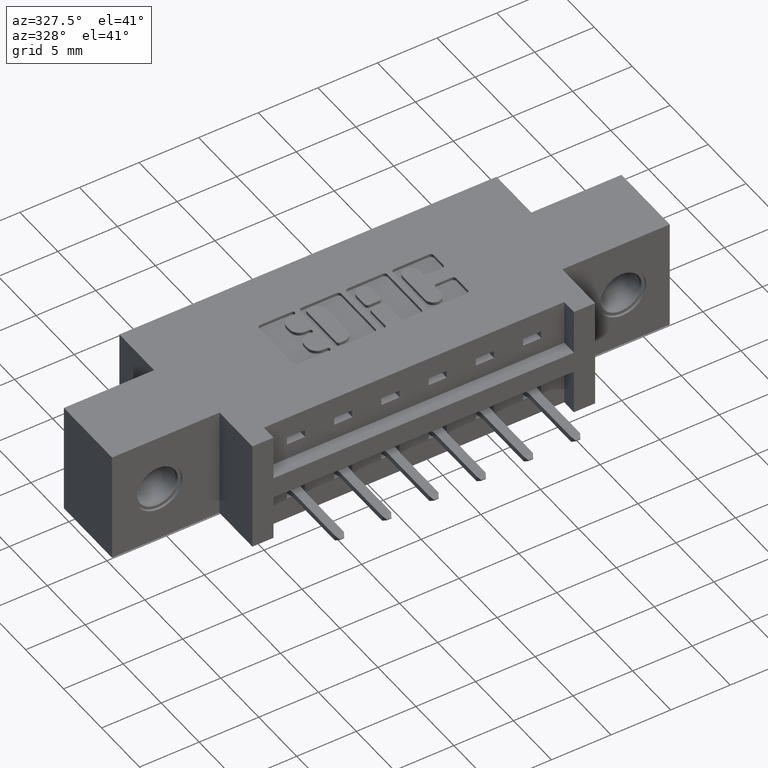
[diagram: clean part render]
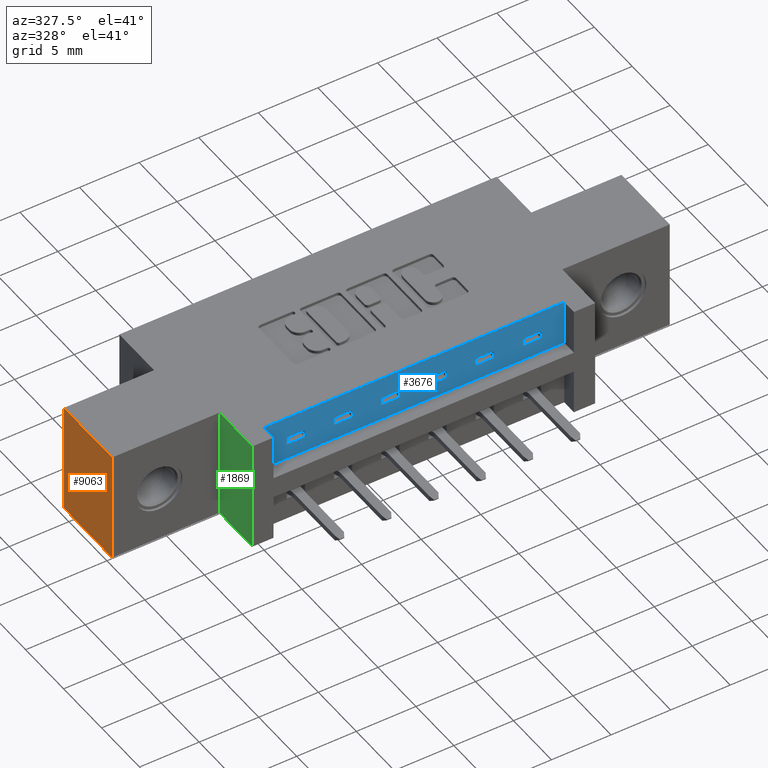
[diagram: same view with three faces highlighted in distinct colors, each labeled with its STEP entity id]
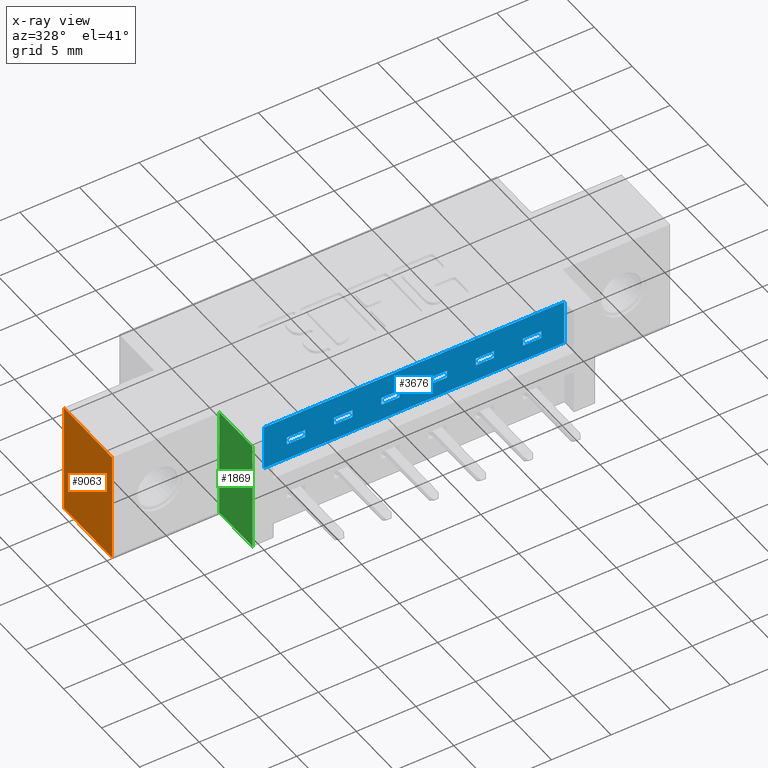
[diagram: x-ray of the same camera — body ghosted, the three highlighted faces saturated]
A machine part, auxiliary view with three faces highlighted in distinct colors.
The next image is the same camera in x-ray (body ghosted, the three faces saturated) — at least one of them is partly hidden behind the body in this view.
Their STEP definitions:

[orange] entity #9063 — the highlighted planar face has unit normal (1, 0, 0).
#407 = EDGE_CURVE ( 'NONE', #4649, #4435, #2341, .T. ) ;
#456 = VERTEX_POINT ( 'NONE', #3846 ) ;
#1125 = EDGE_CURVE ( 'NONE', #10268, #456, #9708, .T. ) ;
#1137 = DIRECTION ( 'NONE',  ( -0.0000000000000000000, -1.000000000000000000, -0.0000000000000000000 ) ) ;
#1508 = CARTESIAN_POINT ( 'NONE',  ( 0.0000000000000000000, 0.1699999999999999800, 0.0000000000000000000 ) ) ;
#1569 = VECTOR ( 'NONE', #6306, 39.37007874015748100 ) ;
#1788 = PLANE ( 'NONE',  #2459 ) ;
#2341 = LINE ( 'NONE', #1508, #1569 ) ;
#2459 = AXIS2_PLACEMENT_3D ( 'NONE', #7519, #3565, #4306 ) ;
#3565 = DIRECTION ( 'NONE',  ( 1.000000000000000000, -0.0000000000000000000, 0.0000000000000000000 ) ) ;
#3846 = CARTESIAN_POINT ( 'NONE',  ( 0.0000000000000000000, 0.4199999999999999800, 0.0000000000000000000 ) ) ;
#4306 = DIRECTION ( 'NONE',  ( 0.0000000000000000000, 0.0000000000000000000, -1.000000000000000000 ) ) ;
#4435 = VERTEX_POINT ( 'NONE', #8910 ) ;
#4506 = EDGE_LOOP ( 'NONE', ( #6530, #7599, #7110, #6072 ) ) ;
#4609 = CARTESIAN_POINT ( 'NONE',  ( 0.0000000000000000000, 0.5999999999999999800, -0.3700000000000001600 ) ) ;
#4649 = VERTEX_POINT ( 'NONE', #5791 ) ;
#5791 = CARTESIAN_POINT ( 'NONE',  ( 0.0000000000000000000, 0.1699999999999999800, 0.0000000000000000000 ) ) ;
#6072 = ORIENTED_EDGE ( 'NONE', *, *, #7587, .T. ) ;
#6306 = DIRECTION ( 'NONE',  ( 0.0000000000000000000, 0.0000000000000000000, -1.000000000000000000 ) ) ;
#6350 = EDGE_CURVE ( 'NONE', #456, #4649, #9753, .T. ) ;
#6530 = ORIENTED_EDGE ( 'NONE', *, *, #407, .F. ) ;
#6877 = FACE_OUTER_BOUND ( 'NONE', #4506, .T. ) ;
#7026 = VECTOR ( 'NONE', #7419, 39.37007874015748100 ) ;
#7110 = ORIENTED_EDGE ( 'NONE', *, *, #1125, .F. ) ;
#7419 = DIRECTION ( 'NONE',  ( -0.0000000000000000000, -0.0000000000000000000, 1.000000000000000000 ) ) ;
#7519 = CARTESIAN_POINT ( 'NONE',  ( 0.0000000000000000000, 0.5999999999999999800, 0.0000000000000000000 ) ) ;
#7587 = EDGE_CURVE ( 'NONE', #10268, #4435, #9966, .T. ) ;
#7599 = ORIENTED_EDGE ( 'NONE', *, *, #6350, .F. ) ;
#7887 = DIRECTION ( 'NONE',  ( -0.0000000000000000000, -1.000000000000000000, -0.0000000000000000000 ) ) ;
#8739 = VECTOR ( 'NONE', #1137, 39.37007874015748100 ) ;
#8910 = CARTESIAN_POINT ( 'NONE',  ( 0.0000000000000000000, 0.1699999999999999800, -0.3700000000000001600 ) ) ;
#9063 = ADVANCED_FACE ( 'NONE', ( #6877 ), #1788, .F. ) ;
#9708 = LINE ( 'NONE', #9877, #7026 ) ;
#9734 = VECTOR ( 'NONE', #7887, 39.37007874015748100 ) ;
#9753 = LINE ( 'NONE', #10356, #8739 ) ;
#9877 = CARTESIAN_POINT ( 'NONE',  ( 0.0000000000000000000, 0.4199999999999999800, 0.0000000000000000000 ) ) ;
#9966 = LINE ( 'NONE', #4609, #9734 ) ;
#10244 = CARTESIAN_POINT ( 'NONE',  ( 0.0000000000000000000, 0.4199999999999999800, -0.3700000000000001600 ) ) ;
#10268 = VERTEX_POINT ( 'NONE', #10244 ) ;
#10356 = CARTESIAN_POINT ( 'NONE',  ( 0.0000000000000000000, 0.5999999999999999800, 0.0000000000000000000 ) ) ;

[blue] entity #3676 — the highlighted planar face has unit normal (0, -1, 0).
#10 = VECTOR ( 'NONE', #2790, 39.37007874015748100 ) ;
#81 = DIRECTION ( 'NONE',  ( 0.0000000000000000000, 0.0000000000000000000, 1.000000000000000000 ) ) ;
#127 = VECTOR ( 'NONE', #6241, 39.37007874015748100 ) ;
#139 = LINE ( 'NONE', #5735, #8048 ) ;
#219 = ORIENTED_EDGE ( 'NONE', *, *, #2062, .F. ) ;
#251 = LINE ( 'NONE', #826, #5095 ) ;
#253 = CARTESIAN_POINT ( 'NONE',  ( 1.124999999999999800, 0.05000000000000014800, -0.07250000000000000900 ) ) ;
#421 = CARTESIAN_POINT ( 'NONE',  ( 0.9689999999999998600, 0.05000000000000001000, -0.09750000000000001700 ) ) ;
#435 = CARTESIAN_POINT ( 'NONE',  ( 0.4249999999999999300, 0.05000000000000000300, -0.09750000000000000300 ) ) ;
#476 = EDGE_CURVE ( 'NONE', #4278, #8372, #9968, .T. ) ;
#482 = EDGE_CURVE ( 'NONE', #6833, #3870, #2599, .T. ) ;
#538 = CARTESIAN_POINT ( 'NONE',  ( 0.5610000000000000500, 0.05000000000000000300, -0.1499999999999999900 ) ) ;
#613 = CARTESIAN_POINT ( 'NONE',  ( 1.340999999999999700, 0.05000000000000000300, -0.09750000000000000300 ) ) ;
#677 = VERTEX_POINT ( 'NONE', #6852 ) ;
#770 = CARTESIAN_POINT ( 'NONE',  ( 0.9689999999999998600, 0.05000000000000014800, -0.07250000000000000900 ) ) ;
#783 = CARTESIAN_POINT ( 'NONE',  ( 0.8129999999999999400, 0.05000000000000001000, -0.09750000000000003100 ) ) ;
#801 = VECTOR ( 'NONE', #1790, 39.37007874015748100 ) ;
#826 = CARTESIAN_POINT ( 'NONE',  ( 0.4249999999999999300, 0.05000000000000000300, -0.07250000000000005100 ) ) ;
#846 = VERTEX_POINT ( 'NONE', #2845 ) ;
#889 = DIRECTION ( 'NONE',  ( 0.0000000000000000000, 0.0000000000000000000, 1.000000000000000000 ) ) ;
#964 = EDGE_CURVE ( 'NONE', #7929, #9888, #5743, .T. ) ;
#968 = ORIENTED_EDGE ( 'NONE', *, *, #3222, .F. ) ;
#1061 = ORIENTED_EDGE ( 'NONE', *, *, #9513, .F. ) ;
#1065 = CARTESIAN_POINT ( 'NONE',  ( 0.8730000000000000000, 0.05000000000000000300, -0.1499999999999999900 ) ) ;
#1142 = EDGE_CURVE ( 'NONE', #9391, #2408, #139, .T. ) ;
#1164 = ORIENTED_EDGE ( 'NONE', *, *, #3696, .F. ) ;
#1272 = VECTOR ( 'NONE', #7625, 39.37007874015748100 ) ;
#1281 = VERTEX_POINT ( 'NONE', #7778 ) ;
#1285 = VECTOR ( 'NONE', #5212, 39.37007874015748100 ) ;
#1305 = VERTEX_POINT ( 'NONE', #3017 ) ;
#1392 = EDGE_CURVE ( 'NONE', #3897, #6833, #6122, .T. ) ;
#1424 = LINE ( 'NONE', #1522, #2703 ) ;
#1426 = EDGE_CURVE ( 'NONE', #10348, #2416, #6640, .T. ) ;
#1440 = EDGE_CURVE ( 'NONE', #7591, #10348, #6376, .T. ) ;
#1522 = CARTESIAN_POINT ( 'NONE',  ( 0.4249999999999999300, 0.05000000000000000300, 0.0000000000000000000 ) ) ;
#1612 = CARTESIAN_POINT ( 'NONE',  ( 0.4249999999999999300, 0.05000000000000000300, 0.0000000000000000000 ) ) ;
#1680 = CARTESIAN_POINT ( 'NONE',  ( 0.9689999999999998600, 0.05000000000000000300, -0.1499999999999999900 ) ) ;
#1709 = VECTOR ( 'NONE', #10509, 39.37007874015748100 ) ;
#1713 = EDGE_CURVE ( 'NONE', #9353, #8366, #10195, .T. ) ;
#1731 = ORIENTED_EDGE ( 'NONE', *, *, #1440, .F. ) ;
#1790 = DIRECTION ( 'NONE',  ( 0.0000000000000000000, 0.0000000000000000000, 1.000000000000000000 ) ) ;
#1866 = DIRECTION ( 'NONE',  ( -1.000000000000000000, 0.0000000000000000000, 0.0000000000000000000 ) ) ;
#1876 = FACE_BOUND ( 'NONE', #10149, .T. ) ;
#1911 = DIRECTION ( 'NONE',  ( 1.000000000000000000, 0.0000000000000000000, 0.0000000000000000000 ) ) ;
#1939 = DIRECTION ( 'NONE',  ( 0.0000000000000000000, 0.0000000000000000000, 1.000000000000000000 ) ) ;
#1965 = ORIENTED_EDGE ( 'NONE', *, *, #1426, .F. ) ;
#2020 = LINE ( 'NONE', #10020, #2538 ) ;
#2048 = LINE ( 'NONE', #7797, #8674 ) ;
#2062 = EDGE_CURVE ( 'NONE', #8612, #4124, #2048, .T. ) ;
#2186 = CARTESIAN_POINT ( 'NONE',  ( 0.6570000000000000300, 0.05000000000000014800, -0.07250000000000003700 ) ) ;
#2233 = DIRECTION ( 'NONE',  ( -0.0000000000000000000, -0.0000000000000000000, 1.000000000000000000 ) ) ;
#2344 = LINE ( 'NONE', #1065, #801 ) ;
#2408 = VERTEX_POINT ( 'NONE', #7478 ) ;
#2416 = VERTEX_POINT ( 'NONE', #7398 ) ;
#2513 = ORIENTED_EDGE ( 'NONE', *, *, #9426, .F. ) ;
#2521 = EDGE_CURVE ( 'NONE', #5753, #846, #5592, .T. ) ;
#2526 = ORIENTED_EDGE ( 'NONE', *, *, #1142, .T. ) ;
#2538 = VECTOR ( 'NONE', #2771, 39.37007874015748100 ) ;
#2599 = LINE ( 'NONE', #7273, #4226 ) ;
#2703 = VECTOR ( 'NONE', #7219, 39.37007874015748100 ) ;
#2730 = VERTEX_POINT ( 'NONE', #8652 ) ;
#2764 = ORIENTED_EDGE ( 'NONE', *, *, #4993, .F. ) ;
#2771 = DIRECTION ( 'NONE',  ( -1.000000000000000000, 0.0000000000000000000, 0.0000000000000000000 ) ) ;
#2790 = DIRECTION ( 'NONE',  ( 0.0000000000000000000, 0.0000000000000000000, 1.000000000000000000 ) ) ;
#2839 = CARTESIAN_POINT ( 'NONE',  ( 0.4249999999999999300, 0.05000000000000000300, -0.1499999999999999900 ) ) ;
#2845 = CARTESIAN_POINT ( 'NONE',  ( 1.280999999999999700, 0.05000000000000014800, -0.07249999999999998100 ) ) ;
#2847 = CARTESIAN_POINT ( 'NONE',  ( 1.185000000000000100, 0.05000000000000000300, -0.09750000000000000300 ) ) ;
#3017 = CARTESIAN_POINT ( 'NONE',  ( 1.417000000000000700, 0.05000000000000000300, -0.1499999999999999900 ) ) ;
#3077 = VECTOR ( 'NONE', #1866, 39.37007874015748100 ) ;
#3078 = CARTESIAN_POINT ( 'NONE',  ( 0.4249999999999999300, 0.05000000000000000300, -0.09750000000000005900 ) ) ;
#3125 = ORIENTED_EDGE ( 'NONE', *, *, #8685, .T. ) ;
#3133 = EDGE_LOOP ( 'NONE', ( #5494, #4804, #5525, #9766 ) ) ;
#3143 = EDGE_LOOP ( 'NONE', ( #1731, #3125, #4749, #1965 ) ) ;
#3179 = EDGE_CURVE ( 'NONE', #9391, #2730, #7630, .T. ) ;
#3222 = EDGE_CURVE ( 'NONE', #3286, #2408, #2020, .T. ) ;
#3224 = CARTESIAN_POINT ( 'NONE',  ( 0.4249999999999999300, 0.05000000000000000300, 0.0000000000000000000 ) ) ;
#3286 = VERTEX_POINT ( 'NONE', #10264 ) ;
#3315 = AXIS2_PLACEMENT_3D ( 'NONE', #2839, #9250, #8457 ) ;
#3423 = CARTESIAN_POINT ( 'NONE',  ( 0.6570000000000000300, 0.05000000000000001000, -0.09750000000000003100 ) ) ;
#3456 = CARTESIAN_POINT ( 'NONE',  ( 0.4249999999999999300, 0.05000000000000000300, -0.07250000000000000900 ) ) ;
#3538 = ORIENTED_EDGE ( 'NONE', *, *, #9829, .F. ) ;
#3606 = CARTESIAN_POINT ( 'NONE',  ( 0.4249999999999999300, 0.05000000000000000300, -0.09750000000000003100 ) ) ;
#3610 = VECTOR ( 'NONE', #7388, 39.37007874015748100 ) ;
#3662 = FACE_BOUND ( 'NONE', #4818, .T. ) ;
#3676 = ADVANCED_FACE ( 'NONE', ( #6326, #5808, #5176, #4815, #3662, #7480, #1876 ), #10131, .T. ) ;
#3696 = EDGE_CURVE ( 'NONE', #4278, #9353, #9645, .T. ) ;
#3759 = ORIENTED_EDGE ( 'NONE', *, *, #2521, .T. ) ;
#3777 = DIRECTION ( 'NONE',  ( 1.000000000000000000, 0.0000000000000000000, 0.0000000000000000000 ) ) ;
#3870 = VERTEX_POINT ( 'NONE', #4746 ) ;
#3897 = VERTEX_POINT ( 'NONE', #9626 ) ;
#3985 = DIRECTION ( 'NONE',  ( 0.0000000000000000000, 0.0000000000000000000, 1.000000000000000000 ) ) ;
#3986 = CARTESIAN_POINT ( 'NONE',  ( 1.280999999999999700, 0.05000000000000001000, -0.09750000000000000300 ) ) ;
#4002 = DIRECTION ( 'NONE',  ( -1.000000000000000000, -0.0000000000000000000, -0.0000000000000000000 ) ) ;
#4074 = DIRECTION ( 'NONE',  ( -1.000000000000000000, 0.0000000000000000000, 0.0000000000000000000 ) ) ;
#4098 = CARTESIAN_POINT ( 'NONE',  ( 0.4249999999999999300, 0.05000000000000000300, -0.1499999999999999900 ) ) ;
#4105 = LINE ( 'NONE', #7533, #10105 ) ;
#4124 = VERTEX_POINT ( 'NONE', #6706 ) ;
#4134 = DIRECTION ( 'NONE',  ( 0.0000000000000000000, 0.0000000000000000000, 1.000000000000000000 ) ) ;
#4226 = VECTOR ( 'NONE', #81, 39.37007874015748100 ) ;
#4242 = LINE ( 'NONE', #8021, #8950 ) ;
#4278 = VERTEX_POINT ( 'NONE', #421 ) ;
#4311 = ORIENTED_EDGE ( 'NONE', *, *, #5301, .T. ) ;
#4345 = VERTEX_POINT ( 'NONE', #613 ) ;
#4397 = ORIENTED_EDGE ( 'NONE', *, *, #7934, .F. ) ;
#4415 = VERTEX_POINT ( 'NONE', #2186 ) ;
#4462 = LINE ( 'NONE', #6200, #6489 ) ;
#4618 = CARTESIAN_POINT ( 'NONE',  ( 0.4249999999999999300, 0.05000000000000000300, -0.07250000000000000900 ) ) ;
#4690 = DIRECTION ( 'NONE',  ( 1.000000000000000000, 0.0000000000000000000, 0.0000000000000000000 ) ) ;
#4716 = LINE ( 'NONE', #6767, #9305 ) ;
#4746 = CARTESIAN_POINT ( 'NONE',  ( 1.184999999999999800, 0.05000000000000014800, -0.07250000000000000900 ) ) ;
#4749 = ORIENTED_EDGE ( 'NONE', *, *, #10003, .F. ) ;
#4804 = ORIENTED_EDGE ( 'NONE', *, *, #5478, .T. ) ;
#4815 = FACE_BOUND ( 'NONE', #6564, .T. ) ;
#4818 = EDGE_LOOP ( 'NONE', ( #1164, #8135, #2764, #7437 ) ) ;
#4891 = CARTESIAN_POINT ( 'NONE',  ( 1.028999999999999900, 0.05000000000000000300, -0.09750000000000001700 ) ) ;
#4931 = ORIENTED_EDGE ( 'NONE', *, *, #9012, .T. ) ;
#4993 = EDGE_CURVE ( 'NONE', #8366, #8372, #7440, .T. ) ;
#5007 = VECTOR ( 'NONE', #889, 39.37007874015748100 ) ;
#5079 = LINE ( 'NONE', #8373, #6862 ) ;
#5095 = VECTOR ( 'NONE', #8202, 39.37007874015748100 ) ;
#5176 = FACE_BOUND ( 'NONE', #6329, .T. ) ;
#5212 = DIRECTION ( 'NONE',  ( 0.0000000000000000000, 0.0000000000000000000, 1.000000000000000000 ) ) ;
#5261 = ORIENTED_EDGE ( 'NONE', *, *, #10194, .F. ) ;
#5301 = EDGE_CURVE ( 'NONE', #5556, #1305, #9086, .T. ) ;
#5415 = CARTESIAN_POINT ( 'NONE',  ( 0.4249999999999999300, 0.05000000000000000300, -0.1499999999999999900 ) ) ;
#5424 = ORIENTED_EDGE ( 'NONE', *, *, #3179, .F. ) ;
#5478 = EDGE_CURVE ( 'NONE', #3897, #7435, #4105, .T. ) ;
#5494 = ORIENTED_EDGE ( 'NONE', *, *, #1392, .F. ) ;
#5500 = CARTESIAN_POINT ( 'NONE',  ( 1.028999999999999900, 0.05000000000000014800, -0.07250000000000000900 ) ) ;
#5525 = ORIENTED_EDGE ( 'NONE', *, *, #9093, .F. ) ;
#5556 = VERTEX_POINT ( 'NONE', #5415 ) ;
#5592 = LINE ( 'NONE', #7585, #1272 ) ;
#5705 = ORIENTED_EDGE ( 'NONE', *, *, #7864, .F. ) ;
#5735 = CARTESIAN_POINT ( 'NONE',  ( 0.8129999999999999400, 0.05000000000000000300, -0.1499999999999999900 ) ) ;
#5743 = LINE ( 'NONE', #3224, #7798 ) ;
#5753 = VERTEX_POINT ( 'NONE', #3986 ) ;
#5774 = CARTESIAN_POINT ( 'NONE',  ( 1.340999999999999700, 0.05000000000000014800, -0.07249999999999998100 ) ) ;
#5808 = FACE_BOUND ( 'NONE', #3143, .T. ) ;
#5987 = LINE ( 'NONE', #3456, #3077 ) ;
#5996 = DIRECTION ( 'NONE',  ( 0.0000000000000000000, 0.0000000000000000000, 1.000000000000000000 ) ) ;
#6106 = CARTESIAN_POINT ( 'NONE',  ( 0.5010000000000001100, 0.05000000000000000300, -0.1499999999999999900 ) ) ;
#6122 = LINE ( 'NONE', #435, #127 ) ;
#6130 = CARTESIAN_POINT ( 'NONE',  ( 0.4249999999999999300, 0.05000000000000000300, -0.09750000000000001700 ) ) ;
#6136 = LINE ( 'NONE', #6106, #10 ) ;
#6200 = CARTESIAN_POINT ( 'NONE',  ( 0.4249999999999999300, 0.05000000000000000300, -0.07249999999999998100 ) ) ;
#6241 = DIRECTION ( 'NONE',  ( 1.000000000000000000, 0.0000000000000000000, 0.0000000000000000000 ) ) ;
#6326 = FACE_OUTER_BOUND ( 'NONE', #8136, .T. ) ;
#6329 = EDGE_LOOP ( 'NONE', ( #219, #9757, #2513, #5261 ) ) ;
#6376 = LINE ( 'NONE', #3078, #7155 ) ;
#6377 = LINE ( 'NONE', #9420, #1285 ) ;
#6484 = CARTESIAN_POINT ( 'NONE',  ( 0.4249999999999999300, 0.05000000000000000300, -0.09750000000000000300 ) ) ;
#6489 = VECTOR ( 'NONE', #8797, 39.37007874015748100 ) ;
#6564 = EDGE_LOOP ( 'NONE', ( #5424, #2526, #968, #4397 ) ) ;
#6597 = CARTESIAN_POINT ( 'NONE',  ( 1.028999999999999900, 0.05000000000000000300, -0.1499999999999999900 ) ) ;
#6640 = LINE ( 'NONE', #538, #7789 ) ;
#6655 = CARTESIAN_POINT ( 'NONE',  ( 1.417000000000000700, 0.05000000000000000300, 0.0000000000000000000 ) ) ;
#6706 = CARTESIAN_POINT ( 'NONE',  ( 0.7170000000000000800, 0.05000000000000000300, -0.09750000000000003100 ) ) ;
#6713 = VECTOR ( 'NONE', #10224, 39.37007874015748100 ) ;
#6767 = CARTESIAN_POINT ( 'NONE',  ( 1.340999999999999700, 0.05000000000000000300, -0.1499999999999999900 ) ) ;
#6833 = VERTEX_POINT ( 'NONE', #2847 ) ;
#6852 = CARTESIAN_POINT ( 'NONE',  ( 0.5010000000000001100, 0.05000000000000014800, -0.07250000000000005100 ) ) ;
#6862 = VECTOR ( 'NONE', #5996, 39.37007874015748100 ) ;
#6935 = ORIENTED_EDGE ( 'NONE', *, *, #964, .T. ) ;
#7061 = DIRECTION ( 'NONE',  ( 0.0000000000000000000, 0.0000000000000000000, 1.000000000000000000 ) ) ;
#7155 = VECTOR ( 'NONE', #4690, 39.37007874015748100 ) ;
#7219 = DIRECTION ( 'NONE',  ( 0.0000000000000000000, 0.0000000000000000000, -1.000000000000000000 ) ) ;
#7273 = CARTESIAN_POINT ( 'NONE',  ( 1.185000000000000100, 0.05000000000000000300, -0.1499999999999999900 ) ) ;
#7364 = VERTEX_POINT ( 'NONE', #5774 ) ;
#7388 = DIRECTION ( 'NONE',  ( 1.000000000000000000, 0.0000000000000000000, 0.0000000000000000000 ) ) ;
#7398 = CARTESIAN_POINT ( 'NONE',  ( 0.5610000000000000500, 0.05000000000000014800, -0.07250000000000005100 ) ) ;
#7435 = VERTEX_POINT ( 'NONE', #253 ) ;
#7437 = ORIENTED_EDGE ( 'NONE', *, *, #1713, .F. ) ;
#7440 = LINE ( 'NONE', #4618, #7565 ) ;
#7478 = CARTESIAN_POINT ( 'NONE',  ( 0.8129999999999999400, 0.05000000000000014800, -0.07250000000000002300 ) ) ;
#7480 = FACE_BOUND ( 'NONE', #3133, .T. ) ;
#7533 = CARTESIAN_POINT ( 'NONE',  ( 1.124999999999999800, 0.05000000000000000300, -0.1499999999999999900 ) ) ;
#7565 = VECTOR ( 'NONE', #9452, 39.37007874015748100 ) ;
#7585 = CARTESIAN_POINT ( 'NONE',  ( 1.280999999999999700, 0.05000000000000000300, -0.1499999999999999900 ) ) ;
#7591 = VERTEX_POINT ( 'NONE', #10166 ) ;
#7625 = DIRECTION ( 'NONE',  ( 0.0000000000000000000, 0.0000000000000000000, 1.000000000000000000 ) ) ;
#7630 = LINE ( 'NONE', #3606, #8254 ) ;
#7673 = EDGE_CURVE ( 'NONE', #1305, #7929, #4242, .T. ) ;
#7778 = CARTESIAN_POINT ( 'NONE',  ( 0.7170000000000000800, 0.05000000000000014800, -0.07250000000000003700 ) ) ;
#7789 = VECTOR ( 'NONE', #7061, 39.37007874015748100 ) ;
#7797 = CARTESIAN_POINT ( 'NONE',  ( 0.4249999999999999300, 0.05000000000000000300, -0.09750000000000003100 ) ) ;
#7798 = VECTOR ( 'NONE', #4002, 39.37007874015748100 ) ;
#7828 = CARTESIAN_POINT ( 'NONE',  ( 0.5610000000000000500, 0.05000000000000000300, -0.09750000000000005900 ) ) ;
#7864 = EDGE_CURVE ( 'NONE', #5753, #4345, #8719, .T. ) ;
#7929 = VERTEX_POINT ( 'NONE', #6655 ) ;
#7934 = EDGE_CURVE ( 'NONE', #2730, #3286, #2344, .T. ) ;
#8021 = CARTESIAN_POINT ( 'NONE',  ( 1.417000000000000700, 0.05000000000000000300, 0.0000000000000000000 ) ) ;
#8048 = VECTOR ( 'NONE', #4134, 39.37007874015748100 ) ;
#8135 = ORIENTED_EDGE ( 'NONE', *, *, #476, .T. ) ;
#8136 = EDGE_LOOP ( 'NONE', ( #4931, #4311, #9088, #6935 ) ) ;
#8154 = VECTOR ( 'NONE', #4074, 39.37007874015748100 ) ;
#8202 = DIRECTION ( 'NONE',  ( -1.000000000000000000, 0.0000000000000000000, 0.0000000000000000000 ) ) ;
#8254 = VECTOR ( 'NONE', #1911, 39.37007874015748100 ) ;
#8366 = VERTEX_POINT ( 'NONE', #5500 ) ;
#8372 = VERTEX_POINT ( 'NONE', #770 ) ;
#8373 = CARTESIAN_POINT ( 'NONE',  ( 0.7170000000000000800, 0.05000000000000000300, -0.1499999999999999900 ) ) ;
#8457 = DIRECTION ( 'NONE',  ( 0.0000000000000000000, -0.0000000000000000000, -1.000000000000000000 ) ) ;
#8612 = VERTEX_POINT ( 'NONE', #3423 ) ;
#8652 = CARTESIAN_POINT ( 'NONE',  ( 0.8730000000000000000, 0.05000000000000000300, -0.09750000000000003100 ) ) ;
#8674 = VECTOR ( 'NONE', #3777, 39.37007874015748100 ) ;
#8685 = EDGE_CURVE ( 'NONE', #7591, #677, #6136, .T. ) ;
#8719 = LINE ( 'NONE', #6484, #1709 ) ;
#8797 = DIRECTION ( 'NONE',  ( -1.000000000000000000, 0.0000000000000000000, 0.0000000000000000000 ) ) ;
#8799 = VECTOR ( 'NONE', #3985, 39.37007874015748100 ) ;
#8851 = EDGE_CURVE ( 'NONE', #8612, #4415, #6377, .T. ) ;
#8950 = VECTOR ( 'NONE', #2233, 39.37007874015748100 ) ;
#9012 = EDGE_CURVE ( 'NONE', #9888, #5556, #1424, .T. ) ;
#9086 = LINE ( 'NONE', #4098, #3610 ) ;
#9088 = ORIENTED_EDGE ( 'NONE', *, *, #7673, .T. ) ;
#9093 = EDGE_CURVE ( 'NONE', #3870, #7435, #5987, .T. ) ;
#9250 = DIRECTION ( 'NONE',  ( 0.0000000000000000000, -1.000000000000000000, 0.0000000000000000000 ) ) ;
#9305 = VECTOR ( 'NONE', #1939, 39.37007874015748100 ) ;
#9353 = VERTEX_POINT ( 'NONE', #4891 ) ;
#9382 = DIRECTION ( 'NONE',  ( 0.0000000000000000000, 0.0000000000000000000, 1.000000000000000000 ) ) ;
#9391 = VERTEX_POINT ( 'NONE', #783 ) ;
#9420 = CARTESIAN_POINT ( 'NONE',  ( 0.6570000000000000300, 0.05000000000000000300, -0.1499999999999999900 ) ) ;
#9426 = EDGE_CURVE ( 'NONE', #1281, #4415, #251, .T. ) ;
#9452 = DIRECTION ( 'NONE',  ( -1.000000000000000000, 0.0000000000000000000, 0.0000000000000000000 ) ) ;
#9513 = EDGE_CURVE ( 'NONE', #4345, #7364, #4716, .T. ) ;
#9626 = CARTESIAN_POINT ( 'NONE',  ( 1.124999999999999800, 0.05000000000000001000, -0.09750000000000000300 ) ) ;
#9645 = LINE ( 'NONE', #6130, #6713 ) ;
#9757 = ORIENTED_EDGE ( 'NONE', *, *, #8851, .T. ) ;
#9766 = ORIENTED_EDGE ( 'NONE', *, *, #482, .F. ) ;
#9829 = EDGE_CURVE ( 'NONE', #7364, #846, #4462, .T. ) ;
#9888 = VERTEX_POINT ( 'NONE', #1612 ) ;
#9928 = CARTESIAN_POINT ( 'NONE',  ( 0.4249999999999999300, 0.05000000000000000300, -0.07250000000000005100 ) ) ;
#9968 = LINE ( 'NONE', #1680, #5007 ) ;
#10003 = EDGE_CURVE ( 'NONE', #2416, #677, #10314, .T. ) ;
#10020 = CARTESIAN_POINT ( 'NONE',  ( 0.4249999999999999300, 0.05000000000000000300, -0.07250000000000000900 ) ) ;
#10105 = VECTOR ( 'NONE', #9382, 39.37007874015748100 ) ;
#10131 = PLANE ( 'NONE',  #3315 ) ;
#10149 = EDGE_LOOP ( 'NONE', ( #5705, #3759, #3538, #1061 ) ) ;
#10166 = CARTESIAN_POINT ( 'NONE',  ( 0.5010000000000001100, 0.05000000000000001000, -0.09750000000000005900 ) ) ;
#10194 = EDGE_CURVE ( 'NONE', #4124, #1281, #5079, .T. ) ;
#10195 = LINE ( 'NONE', #6597, #8799 ) ;
#10224 = DIRECTION ( 'NONE',  ( 1.000000000000000000, 0.0000000000000000000, 0.0000000000000000000 ) ) ;
#10264 = CARTESIAN_POINT ( 'NONE',  ( 0.8730000000000000000, 0.05000000000000014800, -0.07250000000000002300 ) ) ;
#10314 = LINE ( 'NONE', #9928, #8154 ) ;
#10348 = VERTEX_POINT ( 'NONE', #7828 ) ;
#10509 = DIRECTION ( 'NONE',  ( 1.000000000000000000, 0.0000000000000000000, 0.0000000000000000000 ) ) ;

[green] entity #1869 — the highlighted planar face has unit normal (1, 0, 0).
#653 = EDGE_CURVE ( 'NONE', #8631, #2926, #1693, .T. ) ;
#774 = VECTOR ( 'NONE', #7861, 39.37007874015748100 ) ;
#1107 = DIRECTION ( 'NONE',  ( 1.000000000000000000, -0.0000000000000000000, 1.845843238962339800E-016 ) ) ;
#1310 = VECTOR ( 'NONE', #9368, 39.37007874015748100 ) ;
#1383 = CARTESIAN_POINT ( 'NONE',  ( 0.3549999999999999800, 0.1699999999999999800, 0.0000000000000000000 ) ) ;
#1665 = AXIS2_PLACEMENT_3D ( 'NONE', #5195, #1107, #2799 ) ;
#1693 = LINE ( 'NONE', #5714, #10091 ) ;
#1705 = LINE ( 'NONE', #4037, #2221 ) ;
#1869 = ADVANCED_FACE ( 'NONE', ( #3701 ), #5222, .F. ) ;
#2221 = VECTOR ( 'NONE', #9782, 39.37007874015748100 ) ;
#2471 = LINE ( 'NONE', #3568, #1310 ) ;
#2799 = DIRECTION ( 'NONE',  ( 1.845843238962339800E-016, 0.0000000000000000000, -1.000000000000000000 ) ) ;
#2849 = ORIENTED_EDGE ( 'NONE', *, *, #653, .F. ) ;
#2926 = VERTEX_POINT ( 'NONE', #9672 ) ;
#3568 = CARTESIAN_POINT ( 'NONE',  ( 0.3550000000000000400, 0.1699999999999999800, -0.3700000000000000000 ) ) ;
#3701 = FACE_OUTER_BOUND ( 'NONE', #4902, .T. ) ;
#4037 = CARTESIAN_POINT ( 'NONE',  ( 0.3549999999999999800, 0.0000000000000000000, 0.0000000000000000000 ) ) ;
#4236 = ORIENTED_EDGE ( 'NONE', *, *, #8912, .F. ) ;
#4294 = DIRECTION ( 'NONE',  ( -1.845843238962339800E-016, -0.0000000000000000000, 1.000000000000000000 ) ) ;
#4328 = CARTESIAN_POINT ( 'NONE',  ( 0.3550000000000000400, 0.1699999999999999800, -0.3700000000000000000 ) ) ;
#4436 = ORIENTED_EDGE ( 'NONE', *, *, #8156, .T. ) ;
#4492 = ORIENTED_EDGE ( 'NONE', *, *, #7168, .T. ) ;
#4902 = EDGE_LOOP ( 'NONE', ( #4492, #4236, #2849, #4436 ) ) ;
#5195 = CARTESIAN_POINT ( 'NONE',  ( 0.3549999999999999800, 0.1699999999999999800, 0.0000000000000000000 ) ) ;
#5222 = PLANE ( 'NONE',  #1665 ) ;
#5651 = CARTESIAN_POINT ( 'NONE',  ( 0.3550000000000000400, 0.0000000000000000000, -0.3700000000000001600 ) ) ;
#5714 = CARTESIAN_POINT ( 'NONE',  ( 0.3549999999999999800, 0.1699999999999999800, 0.0000000000000000000 ) ) ;
#6480 = VERTEX_POINT ( 'NONE', #5651 ) ;
#7168 = EDGE_CURVE ( 'NONE', #6480, #7441, #1705, .T. ) ;
#7441 = VERTEX_POINT ( 'NONE', #8451 ) ;
#7861 = DIRECTION ( 'NONE',  ( -0.0000000000000000000, -1.000000000000000000, -0.0000000000000000000 ) ) ;
#8156 = EDGE_CURVE ( 'NONE', #8631, #6480, #2471, .T. ) ;
#8451 = CARTESIAN_POINT ( 'NONE',  ( 0.3549999999999999800, 0.0000000000000000000, 0.0000000000000000000 ) ) ;
#8631 = VERTEX_POINT ( 'NONE', #4328 ) ;
#8912 = EDGE_CURVE ( 'NONE', #2926, #7441, #9439, .T. ) ;
#9368 = DIRECTION ( 'NONE',  ( -0.0000000000000000000, -1.000000000000000000, -0.0000000000000000000 ) ) ;
#9439 = LINE ( 'NONE', #1383, #774 ) ;
#9672 = CARTESIAN_POINT ( 'NONE',  ( 0.3549999999999999800, 0.1699999999999999800, 0.0000000000000000000 ) ) ;
#9782 = DIRECTION ( 'NONE',  ( -1.845843238962339800E-016, -0.0000000000000000000, 1.000000000000000000 ) ) ;
#10091 = VECTOR ( 'NONE', #4294, 39.37007874015748100 ) ;